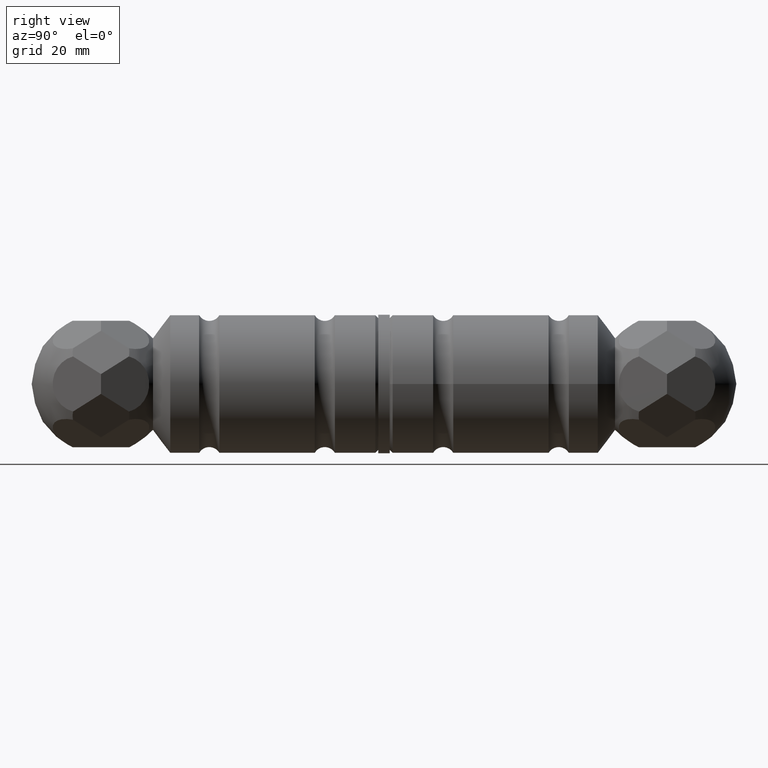
[diagram: clean part render]
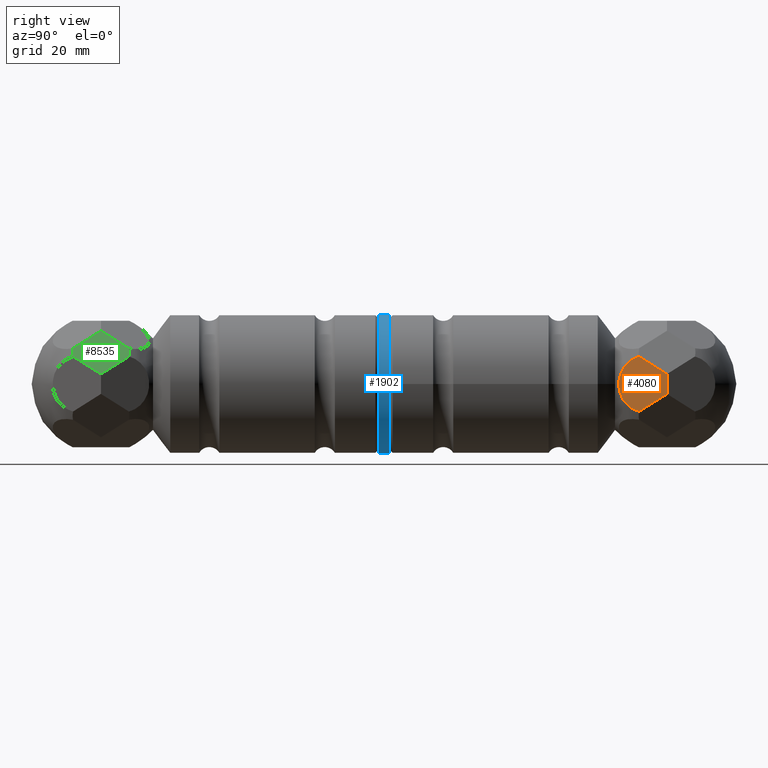
[diagram: same view with three faces highlighted in distinct colors, each labeled with its STEP entity id]
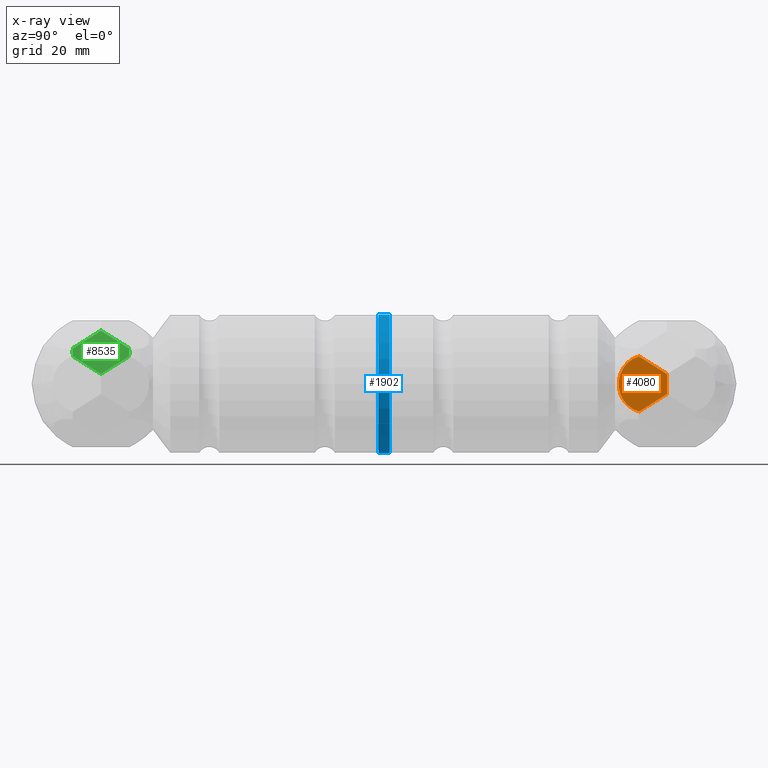
[diagram: x-ray of the same camera — body ghosted, the three highlighted faces saturated]
A machine part, right view with three faces highlighted in distinct colors.
The next image is the same camera in x-ray (body ghosted, the three faces saturated) — at least one of them is partly hidden behind the body in this view.
Their STEP definitions:

[orange] entity #4080 — the highlighted planar face has unit normal (0.9397, -0.342, 0).
#127 = EDGE_CURVE ( 'NONE', #3510, #1825, #12155, .T. ) ;
#626 = EDGE_CURVE ( 'NONE', #3510, #9401, #2429, .T. ) ;
#1184 = AXIS2_PLACEMENT_3D ( 'NONE', #10318, #7516, #3613 ) ;
#1825 = VERTEX_POINT ( 'NONE', #9953 ) ;
#1983 = VECTOR ( 'NONE', #10528, 1000.000000000000114 ) ;
#2046 = CARTESIAN_POINT ( 'NONE',  ( 10.90122265143456559, 45.93520489747793789, 3.018528503094673354 ) ) ;
#2191 = FACE_OUTER_BOUND ( 'NONE', #7729, .T. ) ;
#2223 = DIRECTION ( 'NONE',  ( -0.9396926207859083169, 0.3420201433256694346, -0.000000000000000000 ) ) ;
#2356 = DIRECTION ( 'NONE',  ( 0.3420201433256693790, 0.9396926207859080948, 1.776356839400250070E-15 ) ) ;
#2429 = CIRCLE ( 'NONE', #5332, 4.908920451586074485 ) ;
#2701 = CARTESIAN_POINT ( 'NONE',  ( 9.890892980903240428, 43.15934694148808859, 4.768470824849224243 ) ) ;
#3286 = VERTEX_POINT ( 'NONE', #8097 ) ;
#3510 = VERTEX_POINT ( 'NONE', #5836 ) ;
#3613 = DIRECTION ( 'NONE',  ( 0.3420201433256693790, 0.9396926207859082059, 0.000000000000000000 ) ) ;
#3967 = CARTESIAN_POINT ( 'NONE',  ( 10.90122265143456737, 45.93520489747793789, -3.018528503094588089 ) ) ;
#4080 = ADVANCED_FACE ( 'NONE', ( #2191 ), #11091, .T. ) ;
#4501 = LINE ( 'NONE', #2046, #1983 ) ;
#5118 = DIRECTION ( 'NONE',  ( 0.2942623679600523956, 0.8084792113654895029, 0.5096773720623457571 ) ) ;
#5332 = AXIS2_PLACEMENT_3D ( 'NONE', #7907, #2223, #2356 ) ;
#5688 = ORIENTED_EDGE ( 'NONE', *, *, #626, .F. ) ;
#5718 = DIRECTION ( 'NONE',  ( 0.000000000000000000, 0.000000000000000000, -1.000000000000000000 ) ) ;
#5753 = CARTESIAN_POINT ( 'NONE',  ( 11.65274660861123657, 48.00000000000002132, 0.000000000000000000 ) ) ;
#5836 = CARTESIAN_POINT ( 'NONE',  ( 9.890892980903235099, 43.15934694148807438, -4.768470824849212697 ) ) ;
#6692 = ORIENTED_EDGE ( 'NONE', *, *, #127, .T. ) ;
#7516 = DIRECTION ( 'NONE',  ( 0.9396926207859082059, -0.3420201433256693790, 0.000000000000000000 ) ) ;
#7729 = EDGE_LOOP ( 'NONE', ( #6692, #8993, #8394, #5688 ) ) ;
#7907 = CARTESIAN_POINT ( 'NONE',  ( 10.28963419760569131, 44.25487943058391949, 0.000000000000000000 ) ) ;
#8031 = LINE ( 'NONE', #5753, #10987 ) ;
#8097 = CARTESIAN_POINT ( 'NONE',  ( 11.65274660861123657, 48.00000000000002132, 1.716850826159487031 ) ) ;
#8120 = EDGE_CURVE ( 'NONE', #3286, #1825, #8031, .T. ) ;
#8394 = ORIENTED_EDGE ( 'NONE', *, *, #10569, .T. ) ;
#8993 = ORIENTED_EDGE ( 'NONE', *, *, #8120, .F. ) ;
#9401 = VERTEX_POINT ( 'NONE', #2701 ) ;
#9953 = CARTESIAN_POINT ( 'NONE',  ( 11.65274660861123657, 48.00000000000002132, -1.716850826159368903 ) ) ;
#10318 = CARTESIAN_POINT ( 'NONE',  ( 10.28963419760569487, 44.25487943058394791, 0.000000000000000000 ) ) ;
#10528 = DIRECTION ( 'NONE',  ( -0.2942623679600548936, -0.8084792113654963863, 0.5096773720623334336 ) ) ;
#10569 = EDGE_CURVE ( 'NONE', #3286, #9401, #4501, .T. ) ;
#10669 = VECTOR ( 'NONE', #5118, 1000.000000000000114 ) ;
#10987 = VECTOR ( 'NONE', #5718, 1000.000000000000000 ) ;
#11091 = PLANE ( 'NONE',  #1184 ) ;
#12155 = LINE ( 'NONE', #3967, #10669 ) ;

[blue] entity #1902 — the highlighted cylindrical surface (bore or boss wall) has radius 12 mm, axis along (-0, -1, -0).
#892 = ORIENTED_EDGE ( 'NONE', *, *, #3199, .T. ) ;
#1541 = VERTEX_POINT ( 'NONE', #11939 ) ;
#1619 = DIRECTION ( 'NONE',  ( -0.000000000000000000, -1.000000000000000000, -0.000000000000000000 ) ) ;
#1667 = EDGE_LOOP ( 'NONE', ( #12259 ) ) ;
#1902 = ADVANCED_FACE ( 'NONE', ( #4472, #10644 ), #5634, .T. ) ;
#1935 = DIRECTION ( 'NONE',  ( 0.000000000000000000, 0.000000000000000000, -1.000000000000000000 ) ) ;
#2245 = CARTESIAN_POINT ( 'NONE',  ( 0.000000000000000000, -1.000000000000000000, 0.000000000000000000 ) ) ;
#2322 = CIRCLE ( 'NONE', #6854, 12.00000000000000178 ) ;
#2371 = AXIS2_PLACEMENT_3D ( 'NONE', #2245, #8709, #5001 ) ;
#2983 = CARTESIAN_POINT ( 'NONE',  ( 0.000000000000000000, 1.000000000000000000, 0.000000000000000000 ) ) ;
#3199 = EDGE_CURVE ( 'NONE', #5951, #5951, #12105, .T. ) ;
#4472 = FACE_OUTER_BOUND ( 'NONE', #1667, .T. ) ;
#5001 = DIRECTION ( 'NONE',  ( 0.000000000000000000, 0.000000000000000000, 1.000000000000000000 ) ) ;
#5561 = CARTESIAN_POINT ( 'NONE',  ( 0.000000000000000000, 1.000000000000000000, 0.000000000000000000 ) ) ;
#5634 = CYLINDRICAL_SURFACE ( 'NONE', #6677, 12.00000000000000178 ) ;
#5651 = DIRECTION ( 'NONE',  ( 0.000000000000000000, 0.000000000000000000, 1.000000000000000000 ) ) ;
#5951 = VERTEX_POINT ( 'NONE', #7002 ) ;
#6111 = EDGE_CURVE ( 'NONE', #1541, #1541, #2322, .T. ) ;
#6677 = AXIS2_PLACEMENT_3D ( 'NONE', #5561, #1619, #1935 ) ;
#6685 = DIRECTION ( 'NONE',  ( 0.000000000000000000, 1.000000000000000000, 0.000000000000000000 ) ) ;
#6854 = AXIS2_PLACEMENT_3D ( 'NONE', #2983, #6685, #5651 ) ;
#7002 = CARTESIAN_POINT ( 'NONE',  ( 0.000000000000000000, -1.000000000000000000, 12.00000000000000178 ) ) ;
#8709 = DIRECTION ( 'NONE',  ( 0.000000000000000000, 1.000000000000000000, 0.000000000000000000 ) ) ;
#9261 = EDGE_LOOP ( 'NONE', ( #892 ) ) ;
#10644 = FACE_OUTER_BOUND ( 'NONE', #9261, .T. ) ;
#11939 = CARTESIAN_POINT ( 'NONE',  ( 0.000000000000000000, 1.000000000000000000, 12.00000000000000178 ) ) ;
#12105 = CIRCLE ( 'NONE', #2371, 12.00000000000000178 ) ;
#12259 = ORIENTED_EDGE ( 'NONE', *, *, #6111, .F. ) ;

[green] entity #8535 — the highlighted planar face has unit normal (-0.866, -0, -0.5).
#104 = CARTESIAN_POINT ( 'NONE',  ( -9.075063361976001275, 52.84065305851191141, 6.181529175150764388 ) ) ;
#105 = CARTESIAN_POINT ( 'NONE',  ( -9.075063361976004828, 43.15934694148807438, 6.181529175150754618 ) ) ;
#199 = VECTOR ( 'NONE', #2434, 1000.000000000000000 ) ;
#280 = DIRECTION ( 'NONE',  ( -0.2942623679600501196, 0.8084792113654927226, -0.5096773720623419823 ) ) ;
#670 = ORIENTED_EDGE ( 'NONE', *, *, #5751, .T. ) ;
#916 = PLANE ( 'NONE',  #6079 ) ;
#1222 = CARTESIAN_POINT ( 'NONE',  ( -9.482978171439643944, 47.99999999999999289, 5.474999999999947242 ) ) ;
#1481 = CARTESIAN_POINT ( 'NONE',  ( -8.064733691444676111, 45.93520489747793789, 7.931471496905340146 ) ) ;
#1655 = LINE ( 'NONE', #9221, #11357 ) ;
#1730 = DIRECTION ( 'NONE',  ( -0.2942623679600525621, -0.8084792113654891699, -0.5096773720623462012 ) ) ;
#1792 = VERTEX_POINT ( 'NONE', #7016 ) ;
#2256 = EDGE_CURVE ( 'NONE', #12175, #1792, #1655, .T. ) ;
#2303 = DIRECTION ( 'NONE',  ( -0.8660254037844417052, 6.468871966888534240E-32, 0.4999999999999948930 ) ) ;
#2434 = DIRECTION ( 'NONE',  ( -0.2942623679600499531, -0.8084792113654930557, -0.5096773720623415382 ) ) ;
#2566 = VERTEX_POINT ( 'NONE', #105 ) ;
#2581 = LINE ( 'NONE', #6668, #9961 ) ;
#3339 = DIRECTION ( 'NONE',  ( -0.4999999999999946709, 0.000000000000000000, -0.8660254037844417052 ) ) ;
#3371 = ORIENTED_EDGE ( 'NONE', *, *, #6190, .T. ) ;
#3547 = FACE_OUTER_BOUND ( 'NONE', #6269, .T. ) ;
#3882 = ORIENTED_EDGE ( 'NONE', *, *, #11914, .F. ) ;
#4154 = CARTESIAN_POINT ( 'NONE',  ( -9.482978171439643944, 47.99999999999999289, 5.474999999999947242 ) ) ;
#4857 = CIRCLE ( 'NONE', #11281, 4.908920451586054057 ) ;
#5046 = DIRECTION ( 'NONE',  ( -0.4999999999999946709, -4.240582408499997882E-15, -0.8660254037844417052 ) ) ;
#5284 = VECTOR ( 'NONE', #280, 1000.000000000000000 ) ;
#5430 = ORIENTED_EDGE ( 'NONE', *, *, #8282, .F. ) ;
#5657 = DIRECTION ( 'NONE',  ( -0.4999999999999948375, 3.024945476851731446E-32, -0.8660254037844415942 ) ) ;
#5751 = EDGE_CURVE ( 'NONE', #12026, #12175, #8661, .T. ) ;
#6079 = AXIS2_PLACEMENT_3D ( 'NONE', #8378, #11207, #5657 ) ;
#6190 = EDGE_CURVE ( 'NONE', #10935, #12026, #7608, .T. ) ;
#6269 = EDGE_LOOP ( 'NONE', ( #5430, #3371, #670, #11422, #3882, #8617 ) ) ;
#6668 = CARTESIAN_POINT ( 'NONE',  ( -10.90122265143456204, 45.93520489747793789, 3.018528503094588089 ) ) ;
#7016 = CARTESIAN_POINT ( 'NONE',  ( -11.65274660861123834, 48.00000000000002132, 1.716850826159368903 ) ) ;
#7115 = VERTEX_POINT ( 'NONE', #10602 ) ;
#7530 = DIRECTION ( 'NONE',  ( -0.2942623679600523956, 0.8084792113654895029, -0.5096773720623457571 ) ) ;
#7608 = LINE ( 'NONE', #9482, #5284 ) ;
#7944 = CARTESIAN_POINT ( 'NONE',  ( -9.890892980903242204, 52.84065305851193983, 4.768470824849206480 ) ) ;
#8282 = EDGE_CURVE ( 'NONE', #10935, #2566, #9222, .T. ) ;
#8378 = CARTESIAN_POINT ( 'NONE',  ( -9.482978171439640391, 47.99999999999999289, 5.474999999999943689 ) ) ;
#8535 = ADVANCED_FACE ( 'NONE', ( #3547 ), #916, .F. ) ;
#8617 = ORIENTED_EDGE ( 'NONE', *, *, #8891, .T. ) ;
#8661 = CIRCLE ( 'NONE', #11908, 4.908920451586054057 ) ;
#8891 = EDGE_CURVE ( 'NONE', #7115, #2566, #4857, .T. ) ;
#9221 = CARTESIAN_POINT ( 'NONE',  ( -10.90122265143457803, 50.06479510252204790, 3.018528503094574322 ) ) ;
#9222 = LINE ( 'NONE', #1481, #199 ) ;
#9482 = CARTESIAN_POINT ( 'NONE',  ( -8.064733691444677888, 50.06479510252206211, 7.931471496905352581 ) ) ;
#9961 = VECTOR ( 'NONE', #7530, 1000.000000000000114 ) ;
#10602 = CARTESIAN_POINT ( 'NONE',  ( -9.890892980903235099, 43.15934694148807438, 4.768470824849212697 ) ) ;
#10935 = VERTEX_POINT ( 'NONE', #11653 ) ;
#11207 = DIRECTION ( 'NONE',  ( 0.8660254037844415942, -6.468871966888533145E-32, -0.4999999999999948375 ) ) ;
#11281 = AXIS2_PLACEMENT_3D ( 'NONE', #4154, #2303, #3339 ) ;
#11357 = VECTOR ( 'NONE', #1730, 1000.000000000000000 ) ;
#11422 = ORIENTED_EDGE ( 'NONE', *, *, #2256, .T. ) ;
#11587 = DIRECTION ( 'NONE',  ( -0.8660254037844417052, 6.468871966888534240E-32, 0.4999999999999948930 ) ) ;
#11653 = CARTESIAN_POINT ( 'NONE',  ( -7.313209734268023787, 48.00000000000000711, 9.233149173840548229 ) ) ;
#11908 = AXIS2_PLACEMENT_3D ( 'NONE', #1222, #11587, #5046 ) ;
#11914 = EDGE_CURVE ( 'NONE', #7115, #1792, #2581, .T. ) ;
#12026 = VERTEX_POINT ( 'NONE', #104 ) ;
#12175 = VERTEX_POINT ( 'NONE', #7944 ) ;